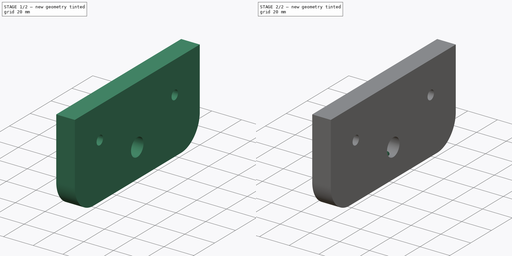
[diagram: build sequence overview — one tinted view per stage of 2, left to right]
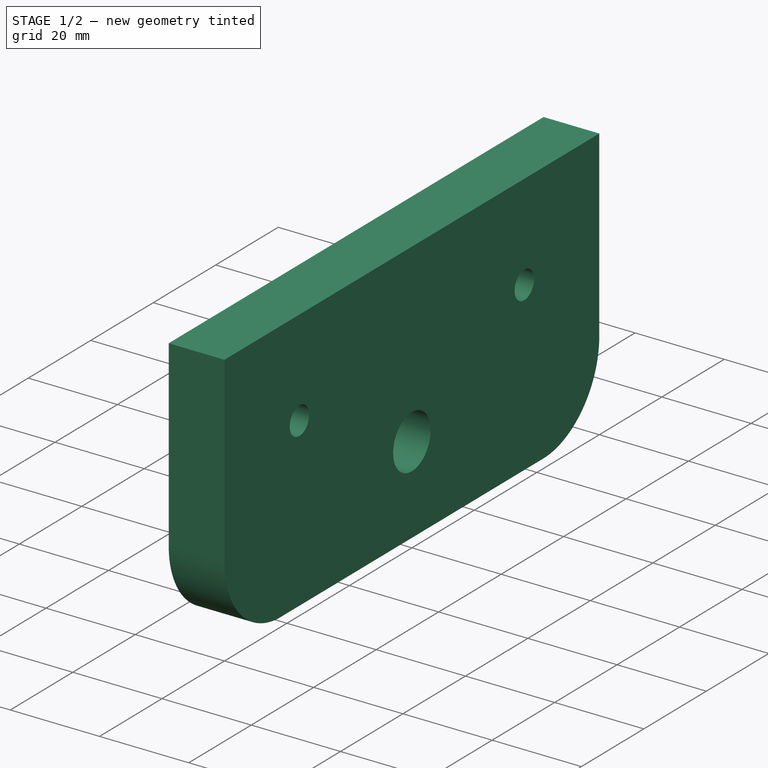
[diagram: stage 1 of 2 — iso view after this stage's code; geometry added in this stage tinted green]
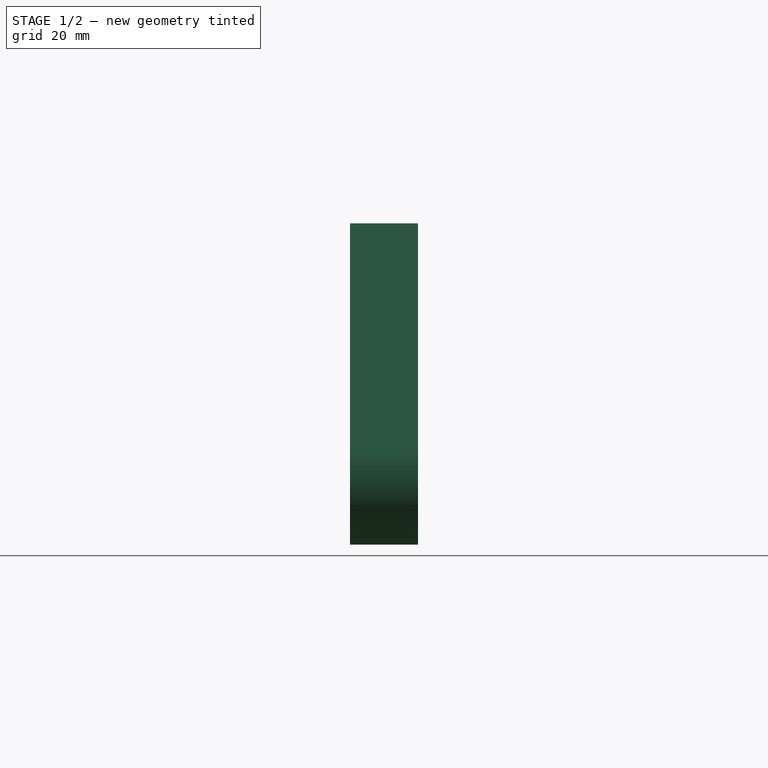
[diagram: stage 1 of 2 — front view after this stage's code; geometry added in this stage tinted green]
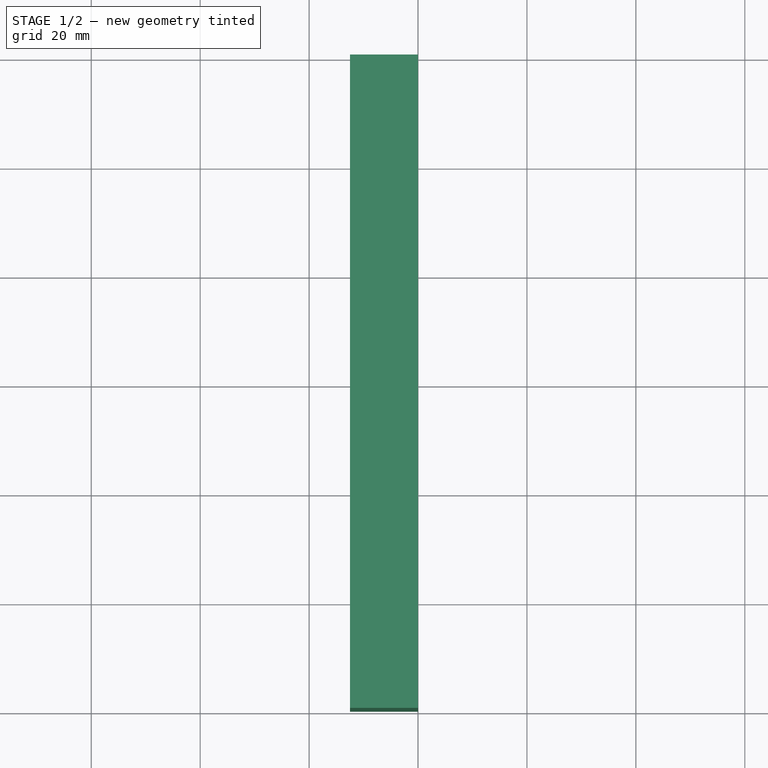
[diagram: stage 1 of 2 — top view after this stage's code; geometry added in this stage tinted green]
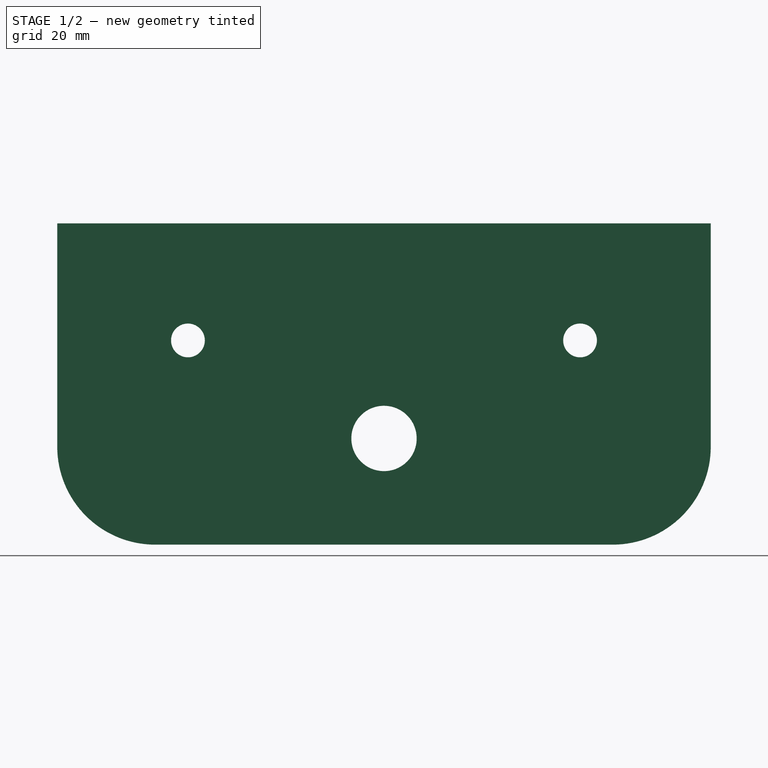
[diagram: stage 1 of 2 — right view after this stage's code; geometry added in this stage tinted green]
FCSTD DOCUMENT  (FreeCAD 0.16R6703 (Git))
Label: Left-Cover-150-new
License: CreativeCommons Attribution-ShareAlike
LicenseURL: http://creativecommons.org/licenses/by-sa/4.0/
objects: Sketcher::SketchObject×3, PartDesign::Pocket×2, PartDesign::Pad×1
note: 9 computed .brp shape members not serialized (recipe doc carries the construction recipe); baked Part::Feature solids carry a one-line shape summary decoded from their .brp

FEATURE [Sketcher::SketchObject] Sketch
  Placement = pos=(0,0,0) rot=(0.57735,-0.57735,-0.57735;2.0944rad)
  sketch-geometry (9):
    g0: LineSegment StartX=-60 StartY=0 StartZ=0 EndX=60 EndY=0 EndZ=0
    g1: LineSegment StartX=60 StartY=0 StartZ=0 EndX=60 EndY=-41 EndZ=0
    g2: LineSegment StartX=42 StartY=-59 StartZ=0 EndX=-42 EndY=-59 EndZ=0
    g3: LineSegment StartX=-60 StartY=-41 StartZ=0 EndX=-60 EndY=0 EndZ=0
    g4: Circle CenterX=0 CenterY=-39.5 CenterZ=0 NormalX=0 NormalY=0 NormalZ=1 Radius=6
    g5: Circle CenterX=-36 CenterY=-21.5 CenterZ=0 NormalX=0 NormalY=0 NormalZ=1 Radius=3.1
    g6: Circle CenterX=36 CenterY=-21.5 CenterZ=0 NormalX=0 NormalY=0 NormalZ=1 Radius=3.1
    g7: ArcOfCircle CenterX=42 CenterY=-41 CenterZ=0 NormalX=0 NormalY=0 NormalZ=1 Radius=18 StartAngle=4.71239 EndAngle=6.28319
    g8: ArcOfCircle CenterX=-42 CenterY=-41 CenterZ=0 NormalX=0 NormalY=0 NormalZ=1 Radius=18 StartAngle=3.14159 EndAngle=4.71239
  constraints (28):
    c: Coincident(g0,g1)
    c: Coincident(g3,g0)
    c: Horizontal(g0)
    c: Vertical(g3)
    c: Vertical(g1)
    c: DistanceX(g0,g0) = 120
    c: PointOnObject(g4,g-2)
    c: DistanceY(g0,g4) = -39.5
    c: Radius(g4) = 6
    c: Equal(g5,g6)
    c: Radius(g5) = 3.1
    c: Symmetric(g5,g6,g-2)
    c: DistanceX(g5,g6) = 72
    c: DistanceY(g5,g0) = 21.5
    c: PointOnObject(g0,g-1)
    c: DistanceY(g-1,g2) = -59
    c: Coincident(g2,g7)
    c: Coincident(g7,g1)
    c: Tangent(g1,g7)
    c: Tangent(g7,g2)
    c: Radius(g7) = 18
    c: DistanceX(g-1,g0) = 60
    c: Horizontal(g2)
    c: Coincident(g2,g8)
    c: Radius(g8) = 18
    c: Tangent(g8,g2)
    c: Coincident(g8,g3)
    c: Tangent(g8,g3)
FEATURE [PartDesign::Pad] Pad
  Length = 12.5
  Length2 = 100
  Placement = pos=(0,0,0) rot=(0.57735,-0.57735,-0.57735;2.0944rad)
  Sketch = -> Sketch
  Type = 0
FEATURE [Sketcher::SketchObject] Sketch001
  Placement = pos=(-12.5,0,0) rot=(0.57735,-0.57735,-0.57735;2.0944rad)
  Support = -> Pad [Face11]
  sketch-geometry (2):
    g0: Circle CenterX=-36 CenterY=-21.5 CenterZ=0 NormalX=0 NormalY=0 NormalZ=1 Radius=5.4
    g1: Circle CenterX=36 CenterY=-21.5 CenterZ=0 NormalX=0 NormalY=0 NormalZ=1 Radius=5.4
  constraints (5):
    c: Symmetric(g0,g1,g-2)
    c: Radius(g0) = 5.4
    c: Equal(g0,g1)
    c: DistanceX(g0,g1) = 72
    c: DistanceY(g-1,g1) = -21.5
FEATURE [PartDesign::Pocket] Pocket
  Length = 5
  Placement = pos=(0,0,0) rot=(0.57735,-0.57735,-0.57735;2.0944rad)
  Sketch = -> Sketch001
  Type = 0
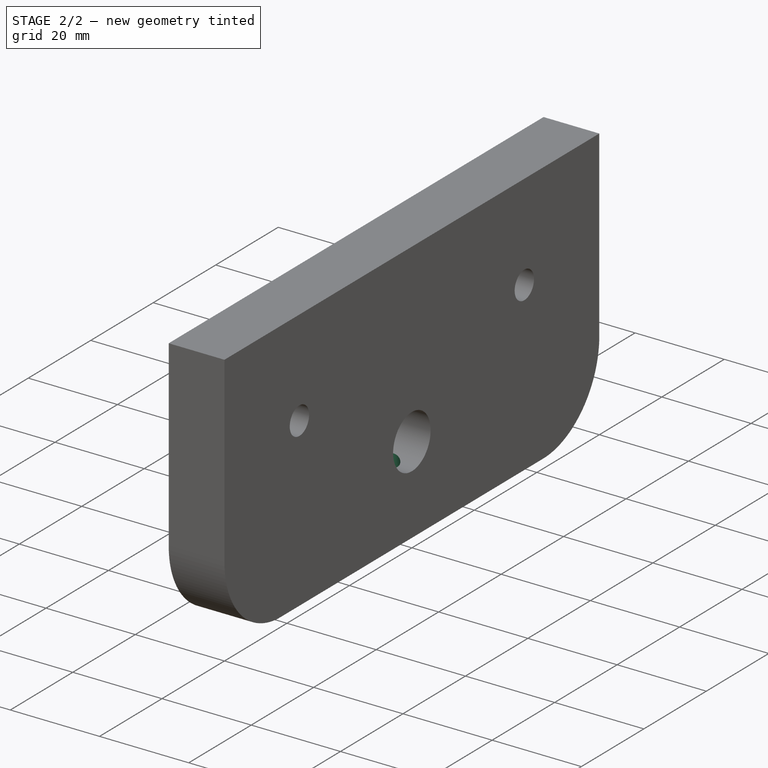
[diagram: stage 2 of 2 — iso view after this stage's code; geometry added in this stage tinted green]
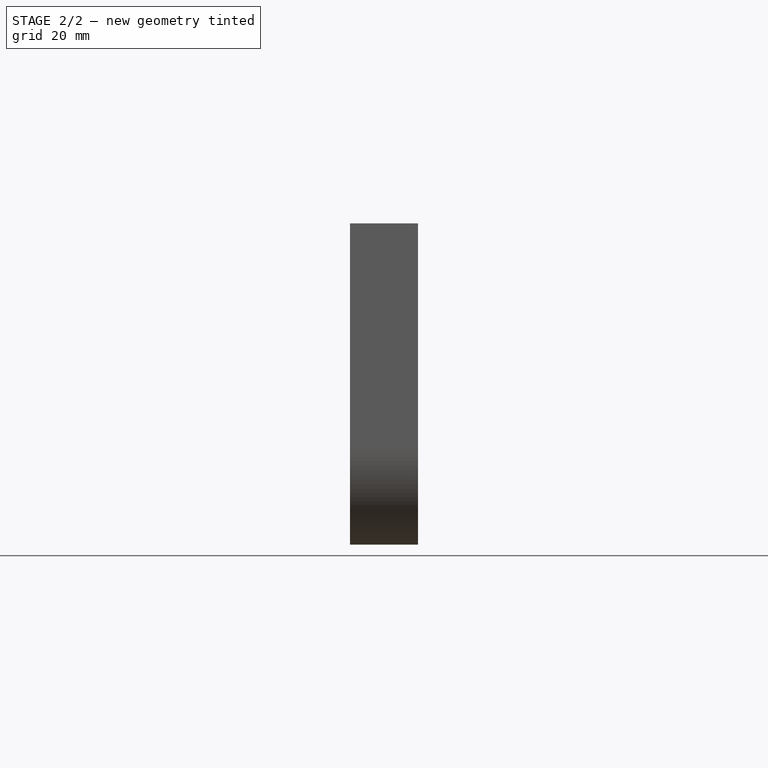
[diagram: stage 2 of 2 — front view after this stage's code; geometry added in this stage tinted green]
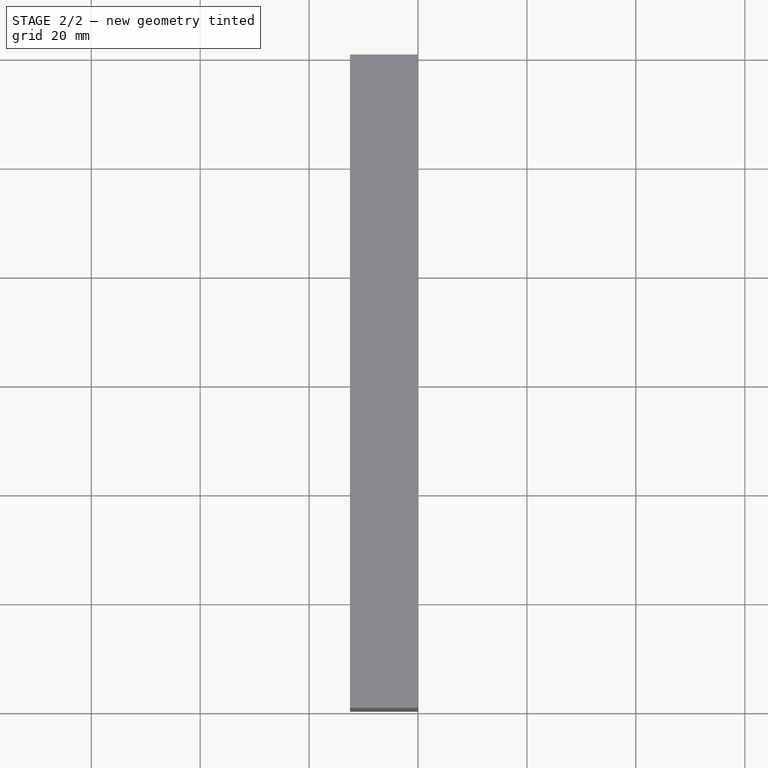
[diagram: stage 2 of 2 — top view after this stage's code; geometry added in this stage tinted green]
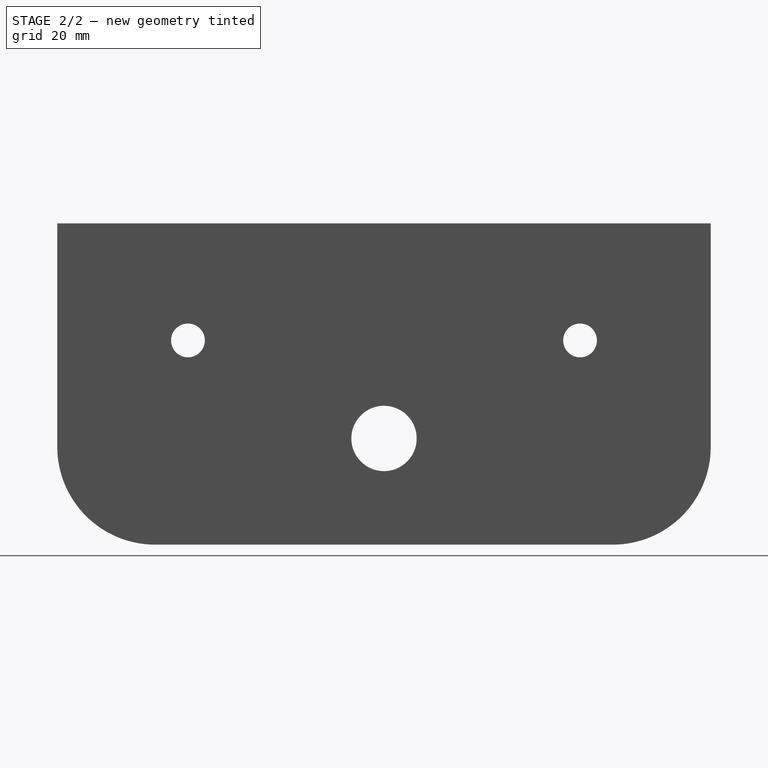
[diagram: stage 2 of 2 — right view after this stage's code; geometry added in this stage tinted green]
FEATURE [Sketcher::SketchObject] Sketch003  label="Sketch002"
  Placement = pos=(0,0,-59) rot=(0.707107,-0.707107,0;3.14159rad)
  Support = -> Pocket [Face6]
  sketch-geometry (1):
    g0: Circle CenterX=0 CenterY=6.25 CenterZ=0 NormalX=0 NormalY=0 NormalZ=1 Radius=3
  constraints (3):
    c: PointOnObject(g0,g-2)
    c: DistanceY(g-1,g0) = 6.25
    c: Radius(g0) = 3
FEATURE [PartDesign::Pocket] Pocket001
  Length = 15
  Placement = pos=(0,0,0) rot=(0.57735,-0.57735,-0.57735;2.0944rad)
  Sketch = -> Sketch003
  Type = 0
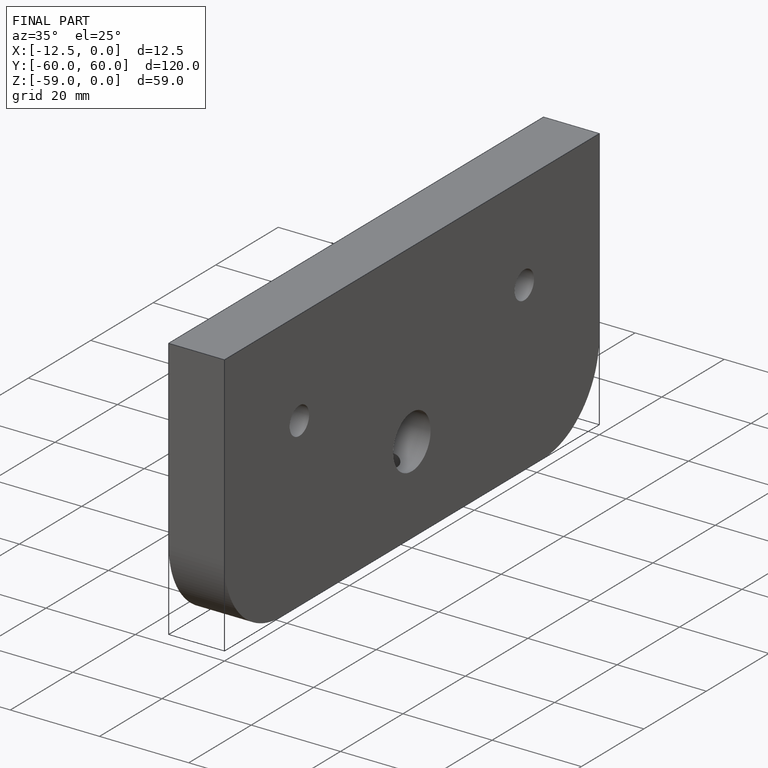
[diagram: finished part — iso view with bounding-box wireframe]
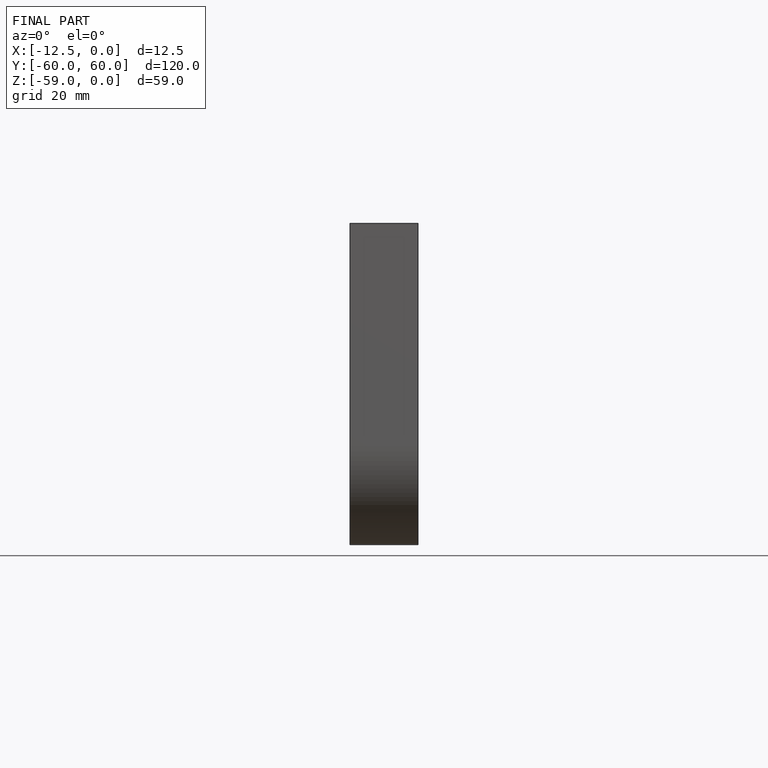
[diagram: finished part — front view with bounding-box wireframe]
